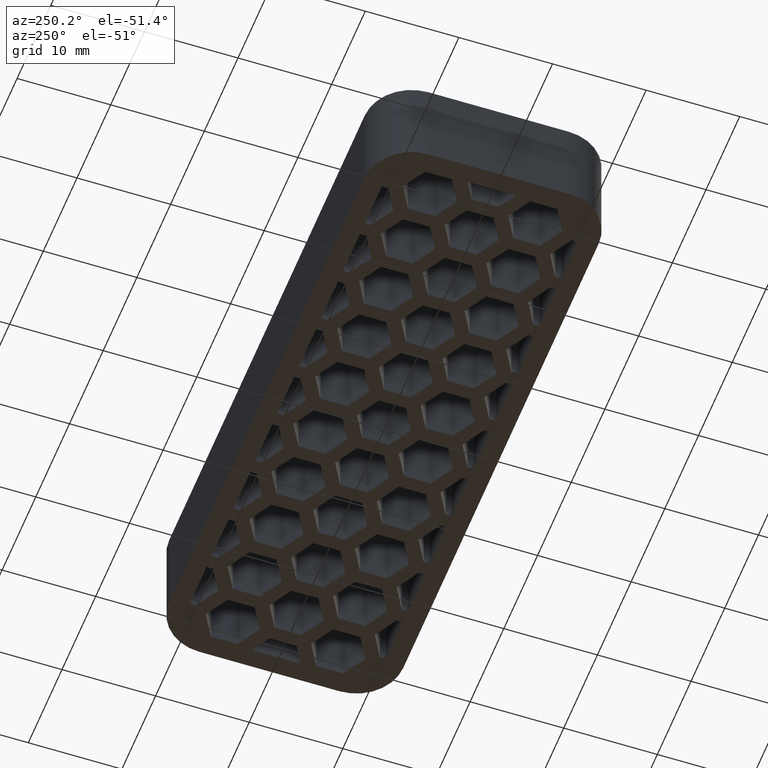
[diagram: clean part render]
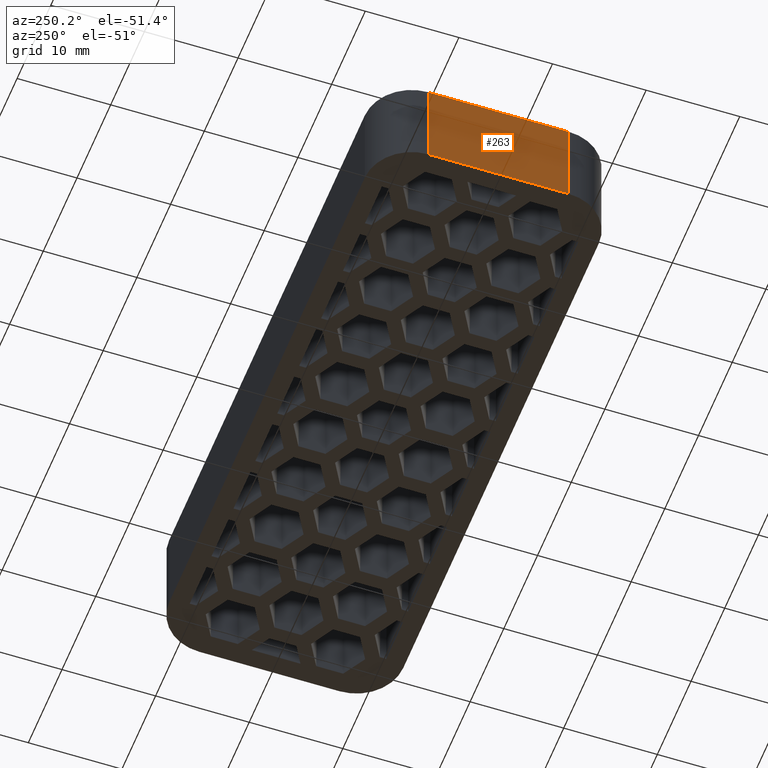
[diagram: same view with one face highlighted and labeled with its STEP entity id]
A machine part, auxiliary view. The second image highlights one B-rep face of the part: STEP entity #263.
In plain terms, the highlighted planar face has unit normal (-1, -0, -0).
Its self-contained STEP definition (entity closure, byte-faithful):
#263 = ADVANCED_FACE( '', ( #878 ), #879, .T. );
#878 = FACE_OUTER_BOUND( '', #1672, .T. );
#879 = PLANE( '', #1673 );
#1672 = EDGE_LOOP( '', ( #3732, #3733, #3734, #3735 ) );
#1673 = AXIS2_PLACEMENT_3D( '', #3736, #3737, #3738 );
#3732 = ORIENTED_EDGE( '', *, *, #5317, .F. );
#3733 = ORIENTED_EDGE( '', *, *, #5801, .F. );
#3734 = ORIENTED_EDGE( '', *, *, #5008, .T. );
#3735 = ORIENTED_EDGE( '', *, *, #5800, .T. );
#3736 = CARTESIAN_POINT( '', ( -34.0000000000000, -7.50000000000000, 95.1170716855138 ) );
#3737 = DIRECTION( '', ( -1.00000000000000, -2.07058111097762E-031, -1.60751816480226E-016 ) );
#3738 = DIRECTION( '', ( -1.77834366428984E-031, 1.00000000000000, -1.81794180051289E-016 ) );
#5008 = EDGE_CURVE( '', #5953, #5951, #5954, .T. );
#5317 = EDGE_CURVE( '', #6562, #6564, #6565, .T. );
#5800 = EDGE_CURVE( '', #5951, #6564, #7348, .T. );
#5801 = EDGE_CURVE( '', #5953, #6562, #7349, .T. );
#5951 = VERTEX_POINT( '', #7512 );
#5953 = VERTEX_POINT( '', #7514 );
#5954 = LINE( '', #7515, #7516 );
#6562 = VERTEX_POINT( '', #8424 );
#6564 = VERTEX_POINT( '', #8426 );
#6565 = LINE( '', #8427, #8428 );
#7348 = LINE( '', #9688, #9689 );
#7349 = LINE( '', #9690, #9691 );
#7512 = CARTESIAN_POINT( '', ( -34.0000000000000, 7.50000000000001, 10.0000000000000 ) );
#7514 = CARTESIAN_POINT( '', ( -34.0000000000000, -7.50000000000001, 10.0000000000000 ) );
#7515 = CARTESIAN_POINT( '', ( -34.0000000000000, 6.12303176911173E-016, 10.0000000000000 ) );
#7516 = VECTOR( '', #9950, 1000.00000000000 );
#8424 = CARTESIAN_POINT( '', ( -34.0000000000000, -7.50000000000001, 1.43370151904978E-014 ) );
#8426 = CARTESIAN_POINT( '', ( -34.0000000000000, 7.50000000000001, 1.34185604251311E-014 ) );
#8427 = CARTESIAN_POINT( '', ( -34.0000000000000, -1.56038633445666E-029, 1.38777878078145E-014 ) );
#8428 = VECTOR( '', #10275, 1000.00000000000 );
#9688 = CARTESIAN_POINT( '', ( -34.0000000000000, 7.50000000000001, 95.1170716855138 ) );
#9689 = VECTOR( '', #10768, 1000.00000000000 );
#9690 = CARTESIAN_POINT( '', ( -34.0000000000000, -7.50000000000000, 95.1170716855138 ) );
#9691 = VECTOR( '', #10769, 1000.00000000000 );
#9950 = DIRECTION( '', ( -1.97215226305253E-031, 1.00000000000000, -6.12303176911189E-017 ) );
#10275 = DIRECTION( '', ( -1.97215226305253E-031, 1.00000000000000, -6.12303176911189E-017 ) );
#10768 = DIRECTION( '', ( 1.60751816480226E-016, -1.81794180051289E-016, -1.00000000000000 ) );
#10769 = DIRECTION( '', ( 1.60751816480226E-016, -1.81794180051289E-016, -1.00000000000000 ) );